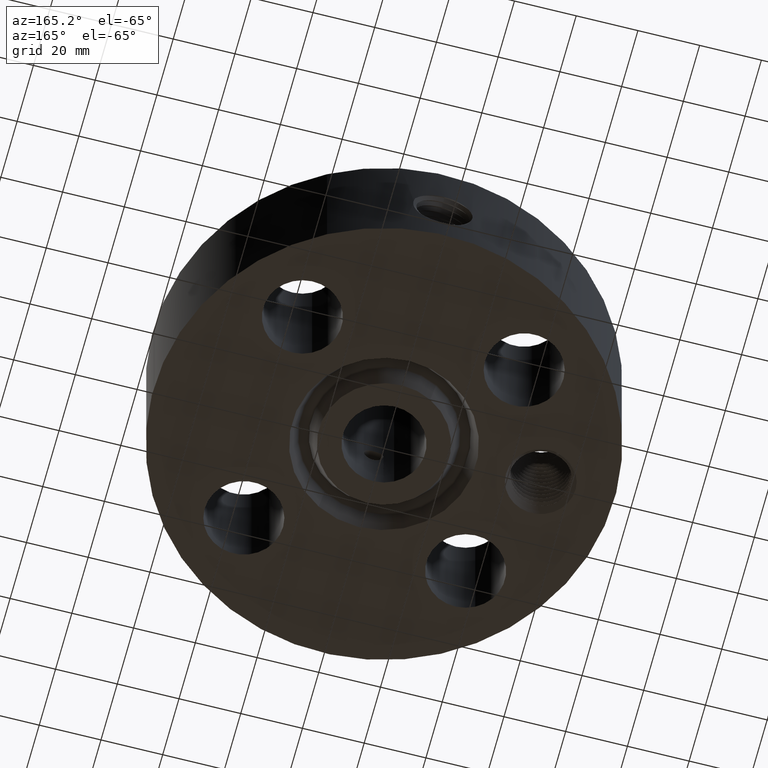
[diagram: clean part render]
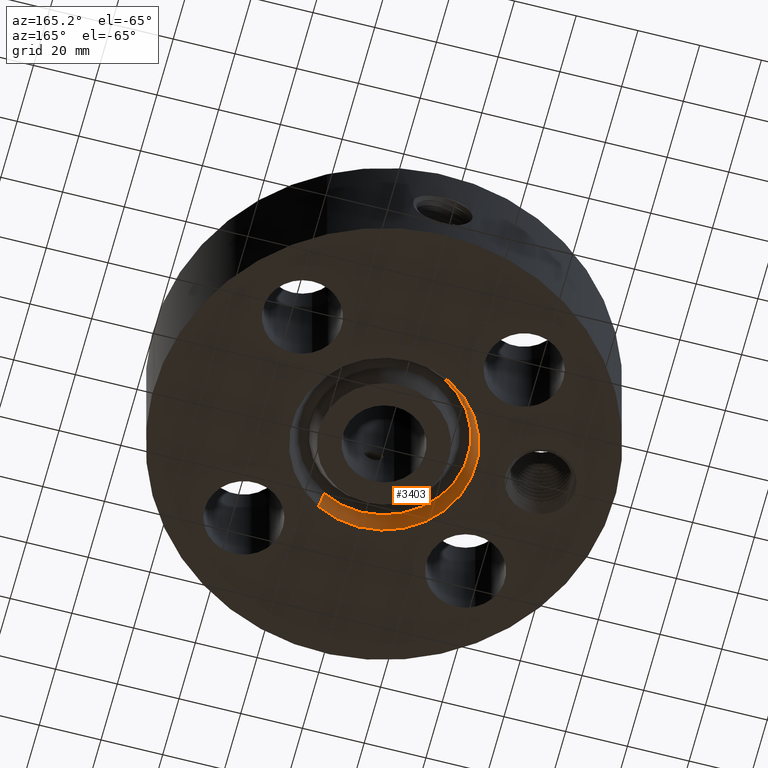
[diagram: same view with one face highlighted and labeled with its STEP entity id]
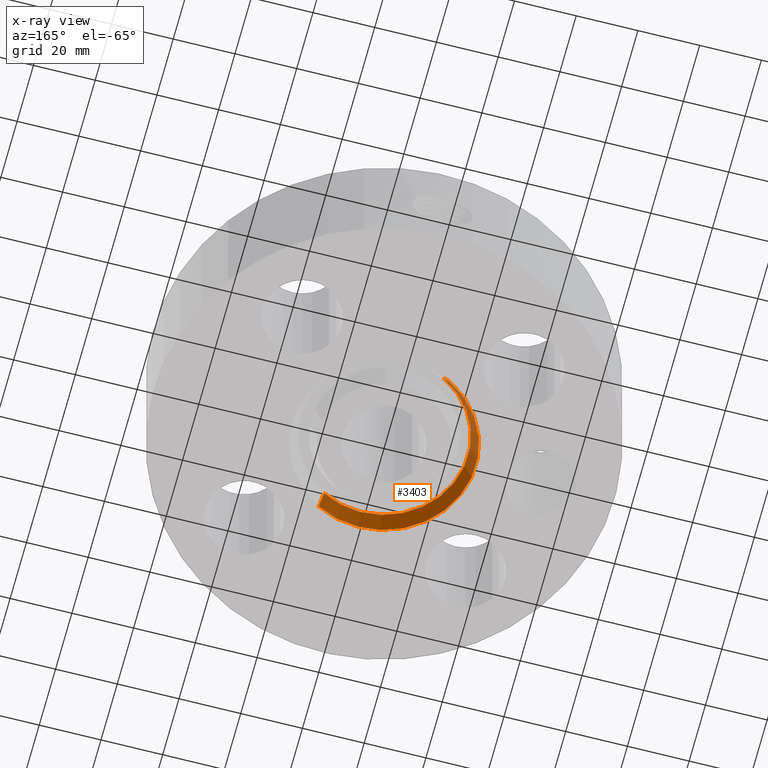
[diagram: x-ray of the same camera — body ghosted, the highlighted face saturated]
A machine part, auxiliary view. The second image highlights one B-rep face of the part: STEP entity #3403.
The next image is the same camera in x-ray: the body ghosted, the highlighted face saturated — about 0% of this face is hidden behind the body in this view.
In plain terms, the highlighted conical surface has half-angle 23 deg.
Its self-contained STEP definition (entity closure, byte-faithful):
#2635=AXIS2_PLACEMENT_3D('Circle Axis2P3D',#2633,#2634,$) ;
#3364=AXIS2_PLACEMENT_3D('Cone Axis2P3D',#3361,#3362,#3363) ;
#3394=AXIS2_PLACEMENT_3D('Circle Axis2P3D',#3392,#3393,$) ;
#2611=CARTESIAN_POINT('Vertex',(0.514730375204,-0.942207631804,0.231721933856)) ;
#2613=CARTESIAN_POINT('Vertex',(-0.514730375204,0.942207631804,0.231721933856)) ;
#2633=CARTESIAN_POINT('Axis2P3D Location',(0.,0.,0.231721933856)) ;
#3361=CARTESIAN_POINT('Axis2P3D Location',(0.,0.,0.231721933856)) ;
#3370=CARTESIAN_POINT('Vertex',(-0.561886731246,1.02852676254,0.)) ;
#3372=CARTESIAN_POINT('Vertex',(0.561886731246,-1.02852676254,0.)) ;
#3375=CARTESIAN_POINT('Line Origine',(0.538308553225,-0.985367197172,0.115860966928)) ;
#3380=CARTESIAN_POINT('Line Origine',(-0.538308553225,0.985367197172,0.115860966928)) ;
#3392=CARTESIAN_POINT('Axis2P3D Location',(0.,0.,0.)) ;
#2634=DIRECTION('Axis2P3D Direction',(0.,0.,0.0393700787402)) ;
#3362=DIRECTION('Axis2P3D Direction',(-0.,-0.,-0.0393700787402)) ;
#3363=DIRECTION('Axis2P3D XDirection',(0.0188750212049,-0.0345504945626,0.)) ;
#3376=DIRECTION('Vector Direction',(0.00737505833565,-0.0134999537303,-0.0362403485611)) ;
#3381=DIRECTION('Vector Direction',(-0.00737505833565,0.0134999537303,-0.0362403485611)) ;
#3393=DIRECTION('Axis2P3D Direction',(0.,0.,-0.0393700787402)) ;
#3377=VECTOR('Line Direction',#3376,0.0393700787402) ;
#3382=VECTOR('Line Direction',#3381,0.0393700787402) ;
#3398=ORIENTED_EDGE('',*,*,#3396,.T.) ;
#3399=ORIENTED_EDGE('',*,*,#3384,.T.) ;
#3400=ORIENTED_EDGE('',*,*,#2637,.T.) ;
#3401=ORIENTED_EDGE('',*,*,#3379,.F.) ;
#3403=ADVANCED_FACE('PartBody',(#3402),#3365,.F.) ;
#2636=CIRCLE('generated circle',#2635,1.07363987472) ;
#3395=CIRCLE('generated circle',#3394,1.172) ;
#3365=CONICAL_SURFACE('Cone',#3364,1.07363987472,0.401425727959) ;
#2637=EDGE_CURVE('',#2614,#2612,#2636,.T.) ;
#3379=EDGE_CURVE('',#3373,#2612,#3378,.F.) ;
#3384=EDGE_CURVE('',#3371,#2614,#3383,.F.) ;
#3396=EDGE_CURVE('',#3373,#3371,#3395,.T.) ;
#3397=EDGE_LOOP('',(#3398,#3399,#3400,#3401)) ;
#3402=FACE_OUTER_BOUND('',#3397,.T.) ;
#3378=LINE('Line',#3375,#3377) ;
#3383=LINE('Line',#3380,#3382) ;
#2612=VERTEX_POINT('',#2611) ;
#2614=VERTEX_POINT('',#2613) ;
#3371=VERTEX_POINT('',#3370) ;
#3373=VERTEX_POINT('',#3372) ;